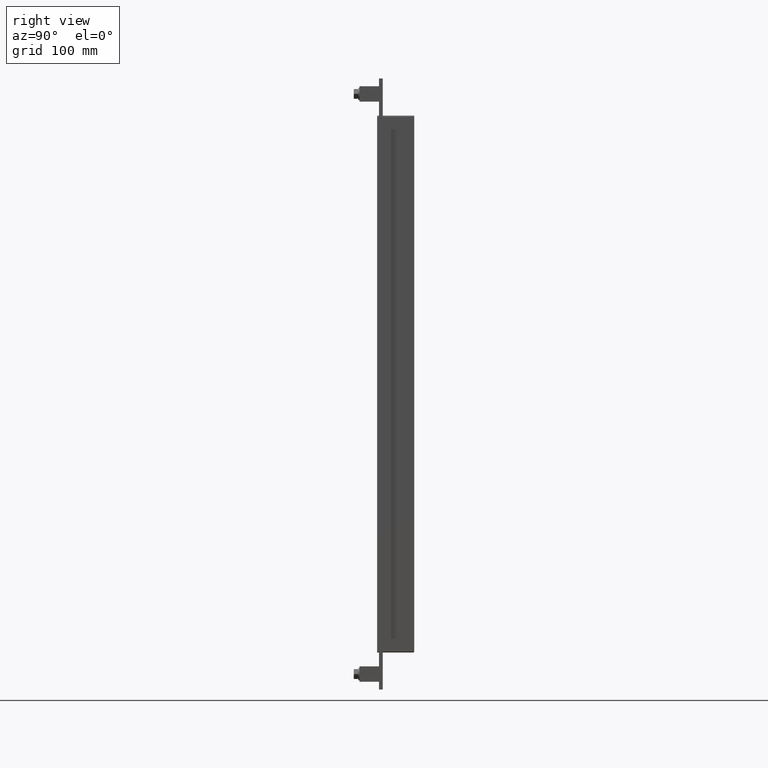
[diagram: clean part render]
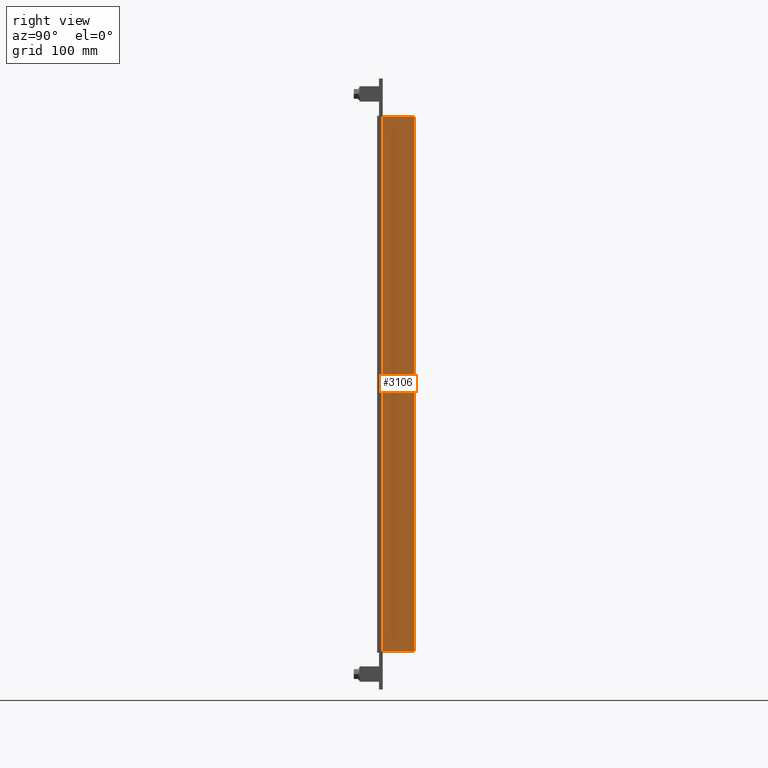
[diagram: same view with one face highlighted and labeled with its STEP entity id]
A machine part, right view. The second image highlights one B-rep face of the part: STEP entity #3106.
In plain terms, the highlighted planar face has unit normal (1, 0, 0).
Its self-contained STEP definition (entity closure, byte-faithful):
#1265=CARTESIAN_POINT('',(262.0,57.0,-433.00000000000011));
#1266=VERTEX_POINT('',#1265);
#1298=CARTESIAN_POINT('',(262.0,57.0,433.0));
#1299=VERTEX_POINT('',#1298);
#1307=CARTESIAN_POINT('',(262.0,57.0,433.0));
#1308=DIRECTION('',(0.0,0.0,-1.0));
#1309=VECTOR('',#1308,866.00000000000011);
#1310=LINE('',#1307,#1309);
#1311=EDGE_CURVE('',#1299,#1266,#1310,.T.);
#2517=CARTESIAN_POINT('',(262.0,6.000000000000001,-433.00000000000011));
#2518=VERTEX_POINT('',#2517);
#2526=CARTESIAN_POINT('',(262.0,6.000000000000001,433.0));
#2527=VERTEX_POINT('',#2526);
#2528=CARTESIAN_POINT('',(262.0,6.000000000000001,433.0));
#2529=DIRECTION('',(0.0,0.0,-1.0));
#2530=VECTOR('',#2529,866.00000000000011);
#2531=LINE('',#2528,#2530);
#2532=EDGE_CURVE('',#2527,#2518,#2531,.T.);
#2886=CARTESIAN_POINT('',(262.0,57.0,-433.00000000000011));
#2887=DIRECTION('',(0.0,-1.0,0.0));
#2888=VECTOR('',#2887,51.0);
#2889=LINE('',#2886,#2888);
#2890=EDGE_CURVE('',#1266,#2518,#2889,.T.);
#3084=CARTESIAN_POINT('',(262.0,6.000000000000001,433.0));
#3085=DIRECTION('',(0.0,1.0,0.0));
#3086=VECTOR('',#3085,51.0);
#3087=LINE('',#3084,#3086);
#3088=EDGE_CURVE('',#2527,#1299,#3087,.T.);
#3095=CARTESIAN_POINT('',(262.0,0.0,435.0));
#3096=DIRECTION('',(1.0,0.0,0.0));
#3097=DIRECTION('',(0.0,0.0,-1.0));
#3098=AXIS2_PLACEMENT_3D('',#3095,#3096,#3097);
#3099=PLANE('',#3098);
#3100=ORIENTED_EDGE('',*,*,#2532,.T.);
#3101=ORIENTED_EDGE('',*,*,#2890,.F.);
#3102=ORIENTED_EDGE('',*,*,#1311,.F.);
#3103=ORIENTED_EDGE('',*,*,#3088,.F.);
#3104=EDGE_LOOP('',(#3100,#3101,#3102,#3103));
#3105=FACE_OUTER_BOUND('',#3104,.T.);
#3106=ADVANCED_FACE('',(#3105),#3099,.T.);